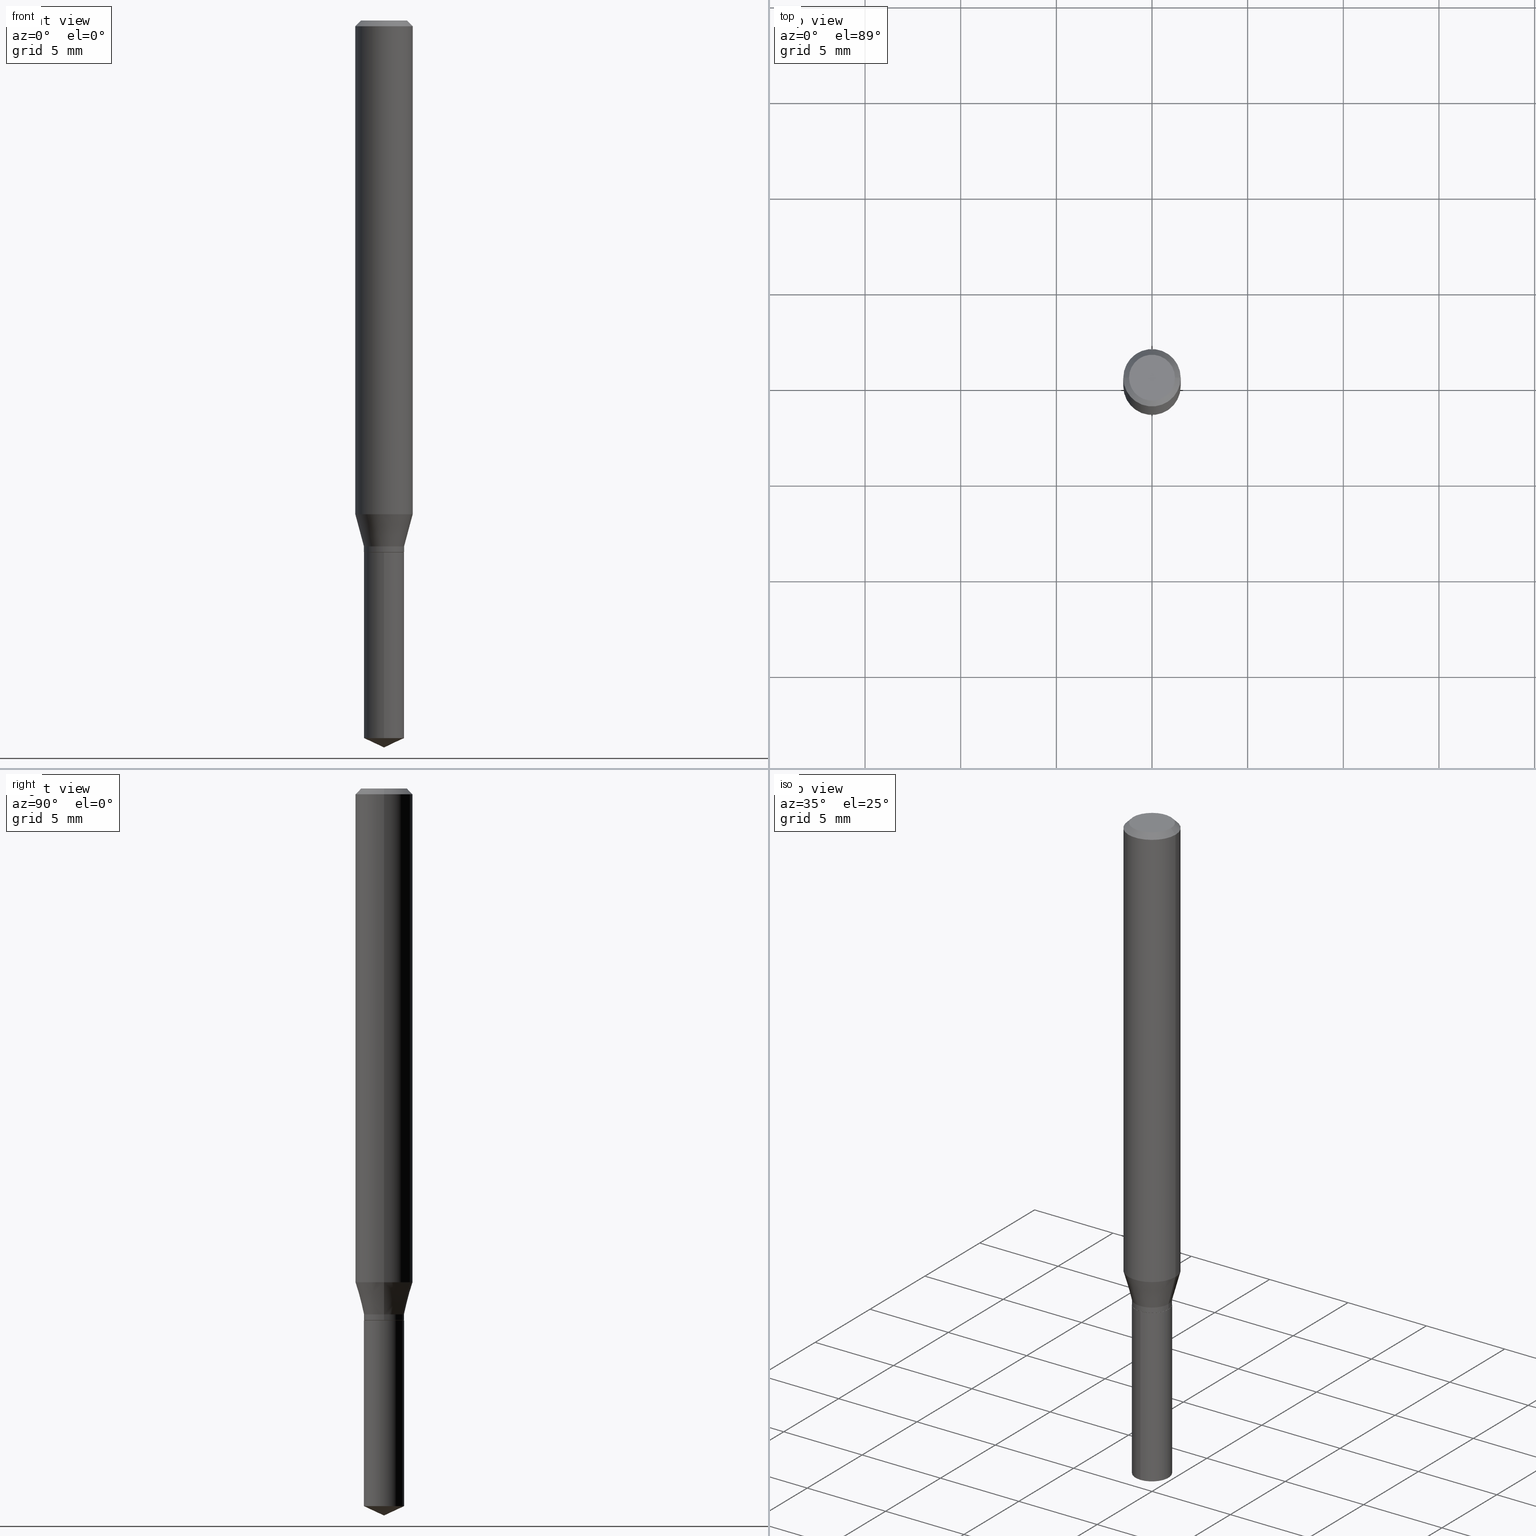
[diagram: canonical four-view strip — front | top / right | iso, engineering-drawing reading convention]
A machine part, canonical four-view strip (front | top / right | iso — engineering-drawing reading convention). The complete STEP part file that produces these views, byte-faithful:
ISO-10303-21;
HEADER;
FILE_DESCRIPTION (( 'STEP AP203' ),
    '1' );
FILE_NAME ('07612.STEP',
    '2024-04-23T23:45:35',
    ( '' ),
    ( '' ),
    'SwSTEP 2.0',
    'SolidWorks 2023',
    '' );
FILE_SCHEMA (( 'CONFIG_CONTROL_DESIGN' ));
ENDSEC;

DATA;
#1 = DIRECTION ( 'NONE',  ( 0.000000000000000000, 0.000000000000000000, 1.000000000000000000 ) ) ;
#2 = AXIS2_PLACEMENT_3D ( 'NONE', #481, #444, #100 ) ;
#3 = DIRECTION ( 'NONE',  ( 0.7071067811865232589, -2.468850131082003836E-15, 0.7071067811865715536 ) ) ;
#4 = ORIENTED_EDGE ( 'NONE', *, *, #73, .T. ) ;
#5 = PERSON_AND_ORGANIZATION ( #101, #90 ) ;
#6 = LINE ( 'NONE', #166, #331 ) ;
#7 = ORIENTED_EDGE ( 'NONE', *, *, #375, .F. ) ;
#8 = APPROVAL_ROLE ( '' ) ;
#9 = EDGE_CURVE ( 'NONE', #92, #380, #118, .T. ) ;
#10 = VERTEX_POINT ( 'NONE', #405 ) ;
#11 = APPROVAL_DATE_TIME ( #320, #190 ) ;
#12 = AXIS2_PLACEMENT_3D ( 'NONE', #106, #400, #333 ) ;
#13 = LINE ( 'NONE', #396, #371 ) ;
#14 = APPROVAL ( #251, 'UNSPECIFIED' ) ;
#15 = ORIENTED_EDGE ( 'NONE', *, *, #36, .T. ) ;
#16 = FACE_OUTER_BOUND ( 'NONE', #50, .T. ) ;
#17 = CARTESIAN_POINT ( 'NONE',  ( 2.676565608369631794E-29, -3.821426325363822773E-15, -1.094499999999999806 ) ) ;
#18 = PRODUCT_RELATED_PRODUCT_CATEGORY ( 'detail', '', ( #281 ) ) ;
#19 = CARTESIAN_POINT ( 'NONE',  ( -9.261924752013118283E-28, 1.322368428517963298E-13, 37.87397874015748300 ) ) ;
#20 = AXIS2_PLACEMENT_3D ( 'NONE', #211, #208, #45 ) ;
#21 = DIRECTION ( 'NONE',  ( -0.2588190451025214611, 5.211531920934551042E-15, 0.9659258262890682012 ) ) ;
#22 = LINE ( 'NONE', #268, #134 ) ;
#23 = ADVANCED_FACE ( 'NONE', ( #199 ), #187, .T. ) ;
#24 = CARTESIAN_POINT ( 'NONE',  ( 2.484700730328698523E-29, -3.547494128982896816E-15, -1.016042700706030422 ) ) ;
#25 = CARTESIAN_POINT ( 'NONE',  ( 2.676565608369631794E-29, -3.821426325363822773E-15, -1.094499999999999806 ) ) ;
#26 = ORIENTED_EDGE ( 'NONE', *, *, #57, .T. ) ;
#27 = EDGE_LOOP ( 'NONE', ( #76, #347, #243, #7 ) ) ;
#28 =( NAMED_UNIT ( * ) PLANE_ANGLE_UNIT ( ) SI_UNIT ( $, .RADIAN. ) );
#29 = EDGE_CURVE ( 'NONE', #10, #237, #487, .T. ) ;
#30 =( NAMED_UNIT ( * ) SI_UNIT ( $, .STERADIAN. ) SOLID_ANGLE_UNIT ( ) );
#31 = CIRCLE ( 'NONE', #249, 0.04134999999999999787 ) ;
#32 = AXIS2_PLACEMENT_3D ( 'NONE', #471, #265, #261 ) ;
#33 = DIRECTION ( 'NONE',  ( -2.445468806185136877E-29, 3.491481338843145188E-15, 1.000000000000000000 ) ) ;
#34 = LINE ( 'NONE', #236, #309 ) ;
#35 = CARTESIAN_POINT ( 'NONE',  ( 2.676565608369631794E-29, -3.821426325363822773E-15, -1.094499999999999806 ) ) ;
#36 = EDGE_CURVE ( 'NONE', #74, #273, #274, .T. ) ;
#37 = EDGE_LOOP ( 'NONE', ( #288, #466, #103, #457 ) ) ;
#38 = ORIENTED_EDGE ( 'NONE', *, *, #235, .T. ) ;
#39 = PERSON_AND_ORGANIZATION_ROLE ( 'design_supplier' ) ;
#40 = LOCAL_TIME ( 19, 45, 35.00000000000000000, #455 ) ;
#41 = DIRECTION ( 'NONE',  ( -6.328713451373382789E-15, -0.9063077870366502697, 0.4226182617406985531 ) ) ;
#42 = ORIENTED_EDGE ( 'NONE', *, *, #195, .F. ) ;
#43 = EDGE_CURVE ( 'NONE', #92, #116, #316, .T. ) ;
#44 = APPROVAL_ROLE ( '' ) ;
#45 = DIRECTION ( 'NONE',  ( -6.982962677686265922E-15, -1.000000000000000000, 6.606645692053841341E-15 ) ) ;
#46 = EDGE_LOOP ( 'NONE', ( #248, #382 ) ) ;
#47 = PERSON_AND_ORGANIZATION ( #101, #90 ) ;
#48 = EDGE_CURVE ( 'NONE', #234, #380, #201, .T. ) ;
#49 = CARTESIAN_POINT ( 'NONE',  ( 2.646241795172936147E-29, -3.778131956762167118E-15, -1.082099999999999840 ) ) ;
#50 = EDGE_LOOP ( 'NONE', ( #284, #352, #280, #65 ) ) ;
#51 = CALENDAR_DATE ( 2024, 23, 4 ) ;
#52 = AXIS2_PLACEMENT_3D ( 'NONE', #180, #404, #374 ) ;
#53 = CARTESIAN_POINT ( 'NONE',  ( 2.676565608369631794E-29, -3.821426325363822773E-15, -1.094499999999999806 ) ) ;
#54 = VECTOR ( 'NONE', #21, 39.37007874015747433 ) ;
#55 = EDGE_CURVE ( 'NONE', #350, #234, #171, .T. ) ;
#56 = CARTESIAN_POINT ( 'NONE',  ( -0.04724000000000000421, 3.504923541997677355E-16, -3.380025165670481712E-19 ) ) ;
#57 = EDGE_CURVE ( 'NONE', #163, #74, #303, .T. ) ;
#58 = DIRECTION ( 'NONE',  ( -2.445468806185136597E-29, 3.491481338843145583E-15, 1.000000000000000000 ) ) ;
#59 = FACE_OUTER_BOUND ( 'NONE', #131, .T. ) ;
#60 = CIRCLE ( 'NONE', #20, 0.04134999999999999787 ) ;
#61 = VERTEX_POINT ( 'NONE', #276 ) ;
#62 = ADVANCED_FACE ( 'NONE', ( #162 ), #336, .T. ) ;
#63 = CARTESIAN_POINT ( 'NONE',  ( 3.611508999955605418E-29, -5.156288534538537160E-15, -1.476818178335290943 ) ) ;
#64 = ORIENTED_EDGE ( 'NONE', *, *, #341, .F. ) ;
#65 = ORIENTED_EDGE ( 'NONE', *, *, #165, .F. ) ;
#66 = DIRECTION ( 'NONE',  ( 1.000000000000000000, -6.982962677686268288E-15, 0.000000000000000000 ) ) ;
#67 = CARTESIAN_POINT ( 'NONE',  ( -0.05905000000000000526, 3.711095515056362547E-16, -0.01181000000000007565 ) ) ;
#68 = LINE ( 'NONE', #475, #54 ) ;
#69 = AXIS2_PLACEMENT_3D ( 'NONE', #432, #141, #296 ) ;
#70 = CIRCLE ( 'NONE', #373, 0.05905000000000000526 ) ;
#71 = EDGE_LOOP ( 'NONE', ( #209, #435, #64, #169 ) ) ;
#72 = DIRECTION ( 'NONE',  ( 1.000000000000000000, -6.982962677686266711E-15, 4.876176775795936353E-29 ) ) ;
#73 = EDGE_CURVE ( 'NONE', #61, #380, #124, .T. ) ;
#74 = VERTEX_POINT ( 'NONE', #150 ) ;
#75 =( CONVERSION_BASED_UNIT ( 'INCH', #126 ) LENGTH_UNIT ( ) NAMED_UNIT ( #119 ) );
#76 = ORIENTED_EDGE ( 'NONE', *, *, #9, .F. ) ;
#77 = FACE_OUTER_BOUND ( 'NONE', #252, .T. ) ;
#78 = VERTEX_POINT ( 'NONE', #304 ) ;
#79 = VECTOR ( 'NONE', #392, 39.37007874015747433 ) ;
#80 = CARTESIAN_POINT ( 'NONE',  ( 0.05905000000000000526, -4.463468013801467941E-16, -0.01181000000000007565 ) ) ;
#81 = ADVANCED_FACE ( 'NONE', ( #442 ), #107, .F. ) ;
#82 = EDGE_LOOP ( 'NONE', ( #370, #212, #321, #108 ) ) ;
#83 = DIRECTION ( 'NONE',  ( -2.445468806185136597E-29, 3.491481338843145583E-15, 1.000000000000000000 ) ) ;
#84 = ORIENTED_EDGE ( 'NONE', *, *, #120, .F. ) ;
#85 = APPROVAL_DATE_TIME ( #461, #324 ) ;
#86 = FACE_OUTER_BOUND ( 'NONE', #82, .T. ) ;
#87 = ORIENTED_EDGE ( 'NONE', *, *, #449, .F. ) ;
#88 = AXIS2_PLACEMENT_3D ( 'NONE', #17, #283, #424 ) ;
#89 = MECHANICAL_CONTEXT ( 'NONE', #454, 'mechanical' ) ;
#90 = ORGANIZATION ( 'UNSPECIFIED', 'UNSPECIFIED', '' ) ;
#91 = CARTESIAN_POINT ( 'NONE',  ( -0.04134999999999999787, -3.505096849491482388E-15, -1.093999999999999861 ) ) ;
#92 = VERTEX_POINT ( 'NONE', #229 ) ;
#93 = COORDINATED_UNIVERSAL_TIME_OFFSET ( 5, 0, .BEHIND. ) ;
#94 = DIRECTION ( 'NONE',  ( -2.445468806185136597E-29, 3.491481338843145583E-15, 1.000000000000000000 ) ) ;
#95 = VERTEX_POINT ( 'NONE', #152 ) ;
#96 = SHAPE_DEFINITION_REPRESENTATION ( #451, #240 ) ;
#97 = AXIS2_PLACEMENT_3D ( 'NONE', #139, #94, #349 ) ;
#98 = CARTESIAN_POINT ( 'NONE',  ( 2.646241795172936147E-29, -3.778131956762167118E-15, -1.082099999999999840 ) ) ;
#99 = AXIS2_PLACEMENT_3D ( 'NONE', #311, #269, #193 ) ;
#100 = DIRECTION ( 'NONE',  ( 1.000000000000000000, -6.982962677686265133E-15, 0.000000000000000000 ) ) ;
#101 = PERSON ( 'UNSPECIFIED', 'UNSPECIFIED', 'UNSPECIFIED', ('UNSPECIFIED'), ('UNSPECIFIED'), ('UNSPECIFIED') ) ;
#102 = DIRECTION ( 'NONE',  ( -6.982962677686265922E-15, -1.000000000000000000, 6.606645692053841341E-15 ) ) ;
#103 = ORIENTED_EDGE ( 'NONE', *, *, #388, .F. ) ;
#104 = LINE ( 'NONE', #364, #355 ) ;
#105 = CC_DESIGN_DATE_AND_TIME_ASSIGNMENT ( #317, #384, ( #182 ) ) ;
#106 = CARTESIAN_POINT ( 'NONE',  ( 2.888098660104664642E-31, -4.123439461173780879E-17, -0.01181000000000007565 ) ) ;
#107 = PLANE ( 'NONE',  #397 ) ;
#108 = ORIENTED_EDGE ( 'NONE', *, *, #43, .F. ) ;
#109 = DIRECTION ( 'NONE',  ( -2.445468806185136597E-29, 3.491481338843145583E-15, 1.000000000000000000 ) ) ;
#110 = ORIENTED_EDGE ( 'NONE', *, *, #120, .T. ) ;
#111 = DIRECTION ( 'NONE',  ( 1.000000000000000000, -6.982962677686273021E-15, 0.000000000000000000 ) ) ;
#112 = ADVANCED_FACE ( 'NONE', ( #306 ), #377, .T. ) ;
#113 = AXIS2_PLACEMENT_3D ( 'NONE', #329, #173, #286 ) ;
#114 = VECTOR ( 'NONE', #381, 39.37007874015748143 ) ;
#115 = CARTESIAN_POINT ( 'NONE',  ( 2.675342873966538993E-29, -3.819680584694400481E-15, -1.093999999999999861 ) ) ;
#116 = VERTEX_POINT ( 'NONE', #254 ) ;
#117 = CARTESIAN_POINT ( 'NONE',  ( 2.938094212368281344E-16, 0.04134999999999617454, -1.094500000000000028 ) ) ;
#118 = LINE ( 'NONE', #158, #142 ) ;
#119 = DIMENSIONAL_EXPONENTS ( 1.000000000000000000, 0.000000000000000000, 0.000000000000000000, 0.000000000000000000, 0.000000000000000000, 0.000000000000000000, 0.000000000000000000 ) ;
#120 = EDGE_CURVE ( 'NONE', #95, #237, #472, .T. ) ;
#121 = DIRECTION ( 'NONE',  ( 0.7071067811865454633, -7.319954787623248157E-15, -0.7071067811865495711 ) ) ;
#122 = ORIENTED_EDGE ( 'NONE', *, *, #313, .F. ) ;
#123 = UNCERTAINTY_MEASURE_WITH_UNIT (LENGTH_MEASURE( 1.000000000000000082E-05 ), #75, 'distance_accuracy_value', 'NONE');
#124 = CIRCLE ( 'NONE', #159, 0.05905000000000000526 ) ;
#125 = CC_DESIGN_SECURITY_CLASSIFICATION ( #425, ( #271 ) ) ;
#126 = LENGTH_MEASURE_WITH_UNIT ( LENGTH_MEASURE( 0.02539999999999999897 ), #488 );
#127 = ORIENTED_EDGE ( 'NONE', *, *, #363, .F. ) ;
#128 = DIRECTION ( 'NONE',  ( 1.000000000000000000, 0.000000000000000000, 0.000000000000000000 ) ) ;
#129 = MANIFOLD_SOLID_BREP ( 'Body-Move/Copy2[1]', #437 ) ;
#130 = DIRECTION ( 'NONE',  ( 1.000000000000000000, -6.982962677686273021E-15, 0.000000000000000000 ) ) ;
#131 = EDGE_LOOP ( 'NONE', ( #328, #110 ) ) ;
#132 = DIRECTION ( 'NONE',  ( 1.000000000000000000, -6.982962677686273021E-15, 0.000000000000000000 ) ) ;
#133 = ORIENTED_EDGE ( 'NONE', *, *, #490, .T. ) ;
#134 = VECTOR ( 'NONE', #186, 39.37007874015748143 ) ;
#135 = APPROVAL_DATE_TIME ( #327, #14 ) ;
#136 = CARTESIAN_POINT ( 'NONE',  ( 0.000000000000000000, 0.000000000000000000, 0.000000000000000000 ) ) ;
#137 = ORIENTED_EDGE ( 'NONE', *, *, #145, .F. ) ;
#138 = PERSON_AND_ORGANIZATION_ROLE ( 'creator' ) ;
#139 = CARTESIAN_POINT ( 'NONE',  ( 2.676565608369631794E-29, -3.821426325363822773E-15, -1.094499999999999806 ) ) ;
#140 = ADVANCED_FACE ( 'NONE', ( #218 ), #402, .T. ) ;
#141 = DIRECTION ( 'NONE',  ( -2.445468806185136597E-29, 3.491481338843145583E-15, 1.000000000000000000 ) ) ;
#142 = VECTOR ( 'NONE', #33, 39.37007874015748143 ) ;
#143 = CARTESIAN_POINT ( 'NONE',  ( 0.04134999999999999787, -4.108426091416728215E-15, -1.093999999999999861 ) ) ;
#144 = VECTOR ( 'NONE', #148, 39.37007874015748143 ) ;
#145 = EDGE_CURVE ( 'NONE', #116, #61, #6, .T. ) ;
#146 = FACE_OUTER_BOUND ( 'NONE', #71, .T. ) ;
#147 = EDGE_CURVE ( 'NONE', #383, #116, #247, .T. ) ;
#148 = DIRECTION ( 'NONE',  ( -2.445468806185136877E-29, 3.491481338843145188E-15, 1.000000000000000000 ) ) ;
#149 = CONICAL_SURFACE ( 'NONE', #277, 84.42940631927494621, 1.134464013796318671 ) ;
#150 = CARTESIAN_POINT ( 'NONE',  ( 0.04084999999999999742, -4.106680350747306712E-15, -1.094499999999999806 ) ) ;
#151 = CARTESIAN_POINT ( 'NONE',  ( 2.676565608369631794E-29, -3.821426325363822773E-15, -1.094499999999999806 ) ) ;
#152 = CARTESIAN_POINT ( 'NONE',  ( 2.938094212368375514E-16, 0.04134999999999618148, -1.094500000000000028 ) ) ;
#153 = VERTEX_POINT ( 'NONE', #91 ) ;
#154 = FACE_OUTER_BOUND ( 'NONE', #227, .T. ) ;
#155 = AXIS2_PLACEMENT_3D ( 'NONE', #63, #360, #102 ) ;
#156 = DIRECTION ( 'NONE',  ( 6.439704144417038242E-15, 0.9063077870366533784, 0.4226182617406922803 ) ) ;
#157 = DIRECTION ( 'NONE',  ( -2.445458899330790108E-29, 3.491495526022433599E-15, 1.000000000000000000 ) ) ;
#158 = CARTESIAN_POINT ( 'NONE',  ( -0.05905000000000006771, 4.195754854663396409E-16, -2.904631170795525045E-30 ) ) ;
#159 = AXIS2_PLACEMENT_3D ( 'NONE', #315, #344, #456 ) ;
#160 = VECTOR ( 'NONE', #121, 39.37007874015748143 ) ;
#161 = APPROVAL_STATUS ( 'not_yet_approved' ) ;
#162 = FACE_OUTER_BOUND ( 'NONE', #445, .T. ) ;
#163 = VERTEX_POINT ( 'NONE', #462 ) ;
#164 = DATE_AND_TIME ( #51, #232 ) ;
#165 = EDGE_CURVE ( 'NONE', #267, #383, #463, .T. ) ;
#166 = CARTESIAN_POINT ( 'NONE',  ( 0.05905000000000006771, -4.123439461173745257E-16, 2.879382386107503723E-30 ) ) ;
#167 = ORIENTED_EDGE ( 'NONE', *, *, #480, .F. ) ;
#168 = CALENDAR_DATE ( 2024, 23, 4 ) ;
#169 = ORIENTED_EDGE ( 'NONE', *, *, #29, .F. ) ;
#170 = AXIS2_PLACEMENT_3D ( 'NONE', #389, #399, #177 ) ;
#171 = CIRCLE ( 'NONE', #196, 0.04724000000000000421 ) ;
#172 = CC_DESIGN_APPROVAL ( #324, ( #182 ) ) ;
#173 = DIRECTION ( 'NONE',  ( -2.445468806185136597E-29, 3.491481338843145583E-15, 1.000000000000000000 ) ) ;
#174 = ADVANCED_FACE ( 'NONE', ( #86 ), #345, .T. ) ;
#175 = VERTEX_POINT ( 'NONE', #470 ) ;
#176 = PERSON_AND_ORGANIZATION ( #101, #90 ) ;
#177 = DIRECTION ( 'NONE',  ( 1.000000000000000000, -6.982962677686267499E-15, 4.876176775795936353E-29 ) ) ;
#178 = CARTESIAN_POINT ( 'NONE',  ( 0.04134999999999999787, -4.066877463484494853E-15, -1.082099999999999840 ) ) ;
#179 = CLOSED_SHELL ( 'NONE', ( #112, #369, #474, #198, #430, #214, #174, #205, #295, #395, #81, #140 ) ) ;
#180 = CARTESIAN_POINT ( 'NONE',  ( 2.676565608369631794E-29, -3.821426325363822773E-15, -1.094499999999999806 ) ) ;
#181 = APPROVAL_PERSON_ORGANIZATION ( #458, #190, #44 ) ;
#182 = PRODUCT_DEFINITION ( 'UNKNOWN', '', #271, #422 ) ;
#183 = CARTESIAN_POINT ( 'NONE',  ( 2.675342873966538993E-29, -3.819680584694400481E-15, -1.093999999999999861 ) ) ;
#184 = DIRECTION ( 'NONE',  ( -2.445468806185136597E-29, 3.491481338843145583E-15, 1.000000000000000000 ) ) ;
#185 = DIRECTION ( 'NONE',  ( 1.000000000000000000, -6.982962677686266711E-15, 4.876185090822587894E-29 ) ) ;
#186 = DIRECTION ( 'NONE',  ( -2.445468806185136877E-29, 3.491481338843145188E-15, 1.000000000000000000 ) ) ;
#187 = CONICAL_SURFACE ( 'NONE', #379, 84.42940631927494621, 1.134464013796318671 ) ;
#188 = AXIS2_PLACEMENT_3D ( 'NONE', #183, #184, #300 ) ;
#189 = DIRECTION ( 'NONE',  ( -2.445468806185136597E-29, 3.491481338843145583E-15, 1.000000000000000000 ) ) ;
#190 = APPROVAL ( #322, 'UNSPECIFIED' ) ;
#191 = FACE_OUTER_BOUND ( 'NONE', #423, .T. ) ;
#192 = ORIENTED_EDGE ( 'NONE', *, *, #449, .T. ) ;
#193 = DIRECTION ( 'NONE',  ( -1.000000000000000000, 6.982962677686265922E-15, -4.876176775795935793E-29 ) ) ;
#194 = DIRECTION ( 'NONE',  ( 1.000000000000000000, -6.982962677686267499E-15, 4.876176775795936353E-29 ) ) ;
#195 = EDGE_CURVE ( 'NONE', #78, #10, #13, .T. ) ;
#196 = AXIS2_PLACEMENT_3D ( 'NONE', #338, #342, #185 ) ;
#197 = CIRCLE ( 'NONE', #188, 0.04134999999999999787 ) ;
#198 = ADVANCED_FACE ( 'NONE', ( #323 ), #297, .T. ) ;
#199 = FACE_OUTER_BOUND ( 'NONE', #310, .T. ) ;
#200 = FACE_OUTER_BOUND ( 'NONE', #319, .T. ) ;
#201 = LINE ( 'NONE', #67, #222 ) ;
#202 = DIRECTION ( 'NONE',  ( 1.000000000000000000, -6.982962677686265133E-15, 0.000000000000000000 ) ) ;
#203 = EDGE_LOOP ( 'NONE', ( #87, #414, #372, #216 ) ) ;
#204 = VECTOR ( 'NONE', #157, 39.37007874015748143 ) ;
#205 = ADVANCED_FACE ( 'NONE', ( #258 ), #294, .T. ) ;
#206 = APPROVAL_PERSON_ORGANIZATION ( #47, #324, #8 ) ;
#207 = PERSON_AND_ORGANIZATION_ROLE ( 'classification_officer' ) ;
#208 = DIRECTION ( 'NONE',  ( -2.445458899330790108E-29, 3.491495526022433205E-15, 1.000000000000000000 ) ) ;
#209 = ORIENTED_EDGE ( 'NONE', *, *, #287, .T. ) ;
#210 = PERSON_AND_ORGANIZATION ( #101, #90 ) ;
#211 = CARTESIAN_POINT ( 'NONE',  ( 3.611508999955605418E-29, -5.156288534538537160E-15, -1.476818178335290943 ) ) ;
#212 = ORIENTED_EDGE ( 'NONE', *, *, #165, .T. ) ;
#213 = COORDINATED_UNIVERSAL_TIME_OFFSET ( 5, 0, .BEHIND. ) ;
#214 = ADVANCED_FACE ( 'NONE', ( #16 ), #421, .T. ) ;
#215 = DIRECTION ( 'NONE',  ( -2.445458899330790108E-29, 3.491495526022433205E-15, 1.000000000000000000 ) ) ;
#216 = ORIENTED_EDGE ( 'NONE', *, *, #375, .T. ) ;
#217 = CIRCLE ( 'NONE', #398, 0.04134999999999999787 ) ;
#218 = FACE_OUTER_BOUND ( 'NONE', #412, .T. ) ;
#219 = CARTESIAN_POINT ( 'NONE',  ( 2.646241795172936147E-29, -3.778131956762167118E-15, -1.082099999999999840 ) ) ;
#220 = CARTESIAN_POINT ( 'NONE',  ( -0.05905000000000000526, -1.374788776330977188E-15, -0.01181000000000007565 ) ) ;
#221 = EDGE_CURVE ( 'NONE', #234, #350, #478, .T. ) ;
#222 = VECTOR ( 'NONE', #312, 39.37007874015748143 ) ;
#223 = CYLINDRICAL_SURFACE ( 'NONE', #278, 0.04134999999999999787 ) ;
#224 = ORIENTED_EDGE ( 'NONE', *, *, #195, .T. ) ;
#225 = PLANE ( 'NONE',  #52 ) ;
#226 = DIRECTION ( 'NONE',  ( -2.445458899330790108E-29, 3.491495526022433205E-15, 1.000000000000000000 ) ) ;
#227 = EDGE_LOOP ( 'NONE', ( #460, #418, #426, #137 ) ) ;
#228 = CC_DESIGN_PERSON_AND_ORGANIZATION_ASSIGNMENT ( #348, #207, ( #425 ) ) ;
#229 = CARTESIAN_POINT ( 'NONE',  ( -0.05905000000000013016, -3.127918643516556534E-15, -1.016042700706030422 ) ) ;
#230 = ORIENTED_EDGE ( 'NONE', *, *, #378, .F. ) ;
#231 = AXIS2_PLACEMENT_3D ( 'NONE', #98, #354, #256 ) ;
#232 = LOCAL_TIME ( 19, 45, 35.00000000000000000, #93 ) ;
#233 = ORIENTED_EDGE ( 'NONE', *, *, #388, .T. ) ;
#234 = VERTEX_POINT ( 'NONE', #56 ) ;
#235 = EDGE_CURVE ( 'NONE', #383, #267, #31, .T. ) ;
#236 = CARTESIAN_POINT ( 'NONE',  ( 3.658672935554494692E-29, -5.223595400746700193E-15, -1.496099999999999985 ) ) ;
#237 = VERTEX_POINT ( 'NONE', #385 ) ;
#238 = CONICAL_SURFACE ( 'NONE', #12, 0.05905000000000000526, 0.7853981633974453924 ) ;
#239 = CIRCLE ( 'NONE', #2, 0.05905000000000013016 ) ;
#240 = ADVANCED_BREP_SHAPE_REPRESENTATION ( '07612', ( #129, #447, #250 ), #438 ) ;
#241 = AXIS2_PLACEMENT_3D ( 'NONE', #242, #411, #72 ) ;
#242 = CARTESIAN_POINT ( 'NONE',  ( 0.000000000000000000, 0.000000000000000000, 0.000000000000000000 ) ) ;
#243 = ORIENTED_EDGE ( 'NONE', *, *, #145, .T. ) ;
#244 = DIRECTION ( 'NONE',  ( -2.445468806185136597E-29, 3.491481338843145583E-15, 1.000000000000000000 ) ) ;
#245 = EDGE_CURVE ( 'NONE', #175, #10, #60, .T. ) ;
#246 = PERSON_AND_ORGANIZATION_ROLE ( 'creator' ) ;
#247 = LINE ( 'NONE', #178, #79 ) ;
#248 = ORIENTED_EDGE ( 'NONE', *, *, #264, .F. ) ;
#249 = AXIS2_PLACEMENT_3D ( 'NONE', #219, #330, #130 ) ;
#250 = AXIS2_PLACEMENT_3D ( 'NONE', #343, #1, #128 ) ;
#251 = APPROVAL_STATUS ( 'not_yet_approved' ) ;
#252 = EDGE_LOOP ( 'NONE', ( #448, #429 ) ) ;
#253 = CALENDAR_DATE ( 2024, 23, 4 ) ;
#254 = CARTESIAN_POINT ( 'NONE',  ( 0.05905000000000013016, -3.959838075100271736E-15, -1.016042700706030422 ) ) ;
#255 = ORIENTED_EDGE ( 'NONE', *, *, #29, .T. ) ;
#256 = DIRECTION ( 'NONE',  ( 1.000000000000000000, -6.982962677686273021E-15, 0.000000000000000000 ) ) ;
#257 = AXIS2_PLACEMENT_3D ( 'NONE', #53, #215, #291 ) ;
#258 = FACE_OUTER_BOUND ( 'NONE', #27, .T. ) ;
#259 = FACE_OUTER_BOUND ( 'NONE', #440, .T. ) ;
#260 = DIRECTION ( 'NONE',  ( -2.445458899330790108E-29, 3.491495526022433205E-15, 1.000000000000000000 ) ) ;
#261 = DIRECTION ( 'NONE',  ( -1.000000000000000000, 6.982962677686265922E-15, 0.000000000000000000 ) ) ;
#262 = AXIS2_PLACEMENT_3D ( 'NONE', #275, #484, #194 ) ;
#263 = ORIENTED_EDGE ( 'NONE', *, *, #293, .F. ) ;
#264 = EDGE_CURVE ( 'NONE', #74, #163, #361, .T. ) ;
#265 = DIRECTION ( 'NONE',  ( 2.445468806185136597E-29, -3.491481338843145583E-15, -1.000000000000000000 ) ) ;
#266 = CARTESIAN_POINT ( 'NONE',  ( 2.676565608369631794E-29, -3.821426325363822773E-15, -1.094499999999999806 ) ) ;
#267 = VERTEX_POINT ( 'NONE', #334 ) ;
#268 = CARTESIAN_POINT ( 'NONE',  ( 0.04134999999999999787, -2.887455067223271427E-16, 2.016299096791619635E-30 ) ) ;
#269 = DIRECTION ( 'NONE',  ( 2.438088387897960049E-29, -3.491481338843145188E-15, -1.000000000000000000 ) ) ;
#270 = AXIS2_PLACEMENT_3D ( 'NONE', #35, #479, #318 ) ;
#271 = PRODUCT_DEFINITION_FORMATION_WITH_SPECIFIED_SOURCE ( 'ANY', '', #281, .NOT_KNOWN. ) ;
#272 = PLANE ( 'NONE',  #99 ) ;
#273 = VERTEX_POINT ( 'NONE', #143 ) ;
#274 = LINE ( 'NONE', #419, #409 ) ;
#275 = CARTESIAN_POINT ( 'NONE',  ( 0.000000000000000000, 0.000000000000000000, 0.000000000000000000 ) ) ;
#276 = CARTESIAN_POINT ( 'NONE',  ( 0.05905000000000000526, -4.535783407291119586E-16, -0.01181000000000007565 ) ) ;
#277 = AXIS2_PLACEMENT_3D ( 'NONE', #19, #434, #368 ) ;
#278 = AXIS2_PLACEMENT_3D ( 'NONE', #476, #260, #366 ) ;
#279 = CC_DESIGN_PERSON_AND_ORGANIZATION_ASSIGNMENT ( #469, #246, ( #182 ) ) ;
#280 = ORIENTED_EDGE ( 'NONE', *, *, #293, .T. ) ;
#281 = PRODUCT ( '07612', '07612', '', ( #89 ) ) ;
#282 = APPLICATION_PROTOCOL_DEFINITION ( 'international standard', 'config_control_design', 1994, #427 ) ;
#283 = DIRECTION ( 'NONE',  ( -2.445468806185136597E-29, 3.491481338843145583E-15, 1.000000000000000000 ) ) ;
#284 = ORIENTED_EDGE ( 'NONE', *, *, #365, .F. ) ;
#285 = PERSON_AND_ORGANIZATION_ROLE ( 'design_owner' ) ;
#286 = DIRECTION ( 'NONE',  ( 1.000000000000000000, -6.982962677686273021E-15, 0.000000000000000000 ) ) ;
#287 = EDGE_CURVE ( 'NONE', #10, #175, #289, .T. ) ;
#288 = ORIENTED_EDGE ( 'NONE', *, *, #264, .T. ) ;
#289 = CIRCLE ( 'NONE', #155, 0.04134999999999999787 ) ;
#290 = CALENDAR_DATE ( 2024, 23, 4 ) ;
#291 = DIRECTION ( 'NONE',  ( -6.982962677686265922E-15, -1.000000000000000000, 3.303322846026920670E-15 ) ) ;
#292 = ORIENTED_EDGE ( 'NONE', *, *, #365, .T. ) ;
#293 = EDGE_CURVE ( 'NONE', #273, #383, #22, .T. ) ;
#294 = CYLINDRICAL_SURFACE ( 'NONE', #308, 0.05905000000000006771 ) ;
#295 = ADVANCED_FACE ( 'NONE', ( #408 ), #238, .T. ) ;
#296 = DIRECTION ( 'NONE',  ( 1.000000000000000000, -6.982962677686266711E-15, 4.876185090822587894E-29 ) ) ;
#297 = CONICAL_SURFACE ( 'NONE', #113, 0.04134999999999999787, 0.2617993877991501295 ) ;
#298 = AXIS2_PLACEMENT_3D ( 'NONE', #115, #83, #111 ) ;
#299 = ADVANCED_FACE ( 'NONE', ( #259 ), #149, .T. ) ;
#300 = DIRECTION ( 'NONE',  ( 1.000000000000000000, -6.982962677686273021E-15, 0.000000000000000000 ) ) ;
#301 = DIRECTION ( 'NONE',  ( -0.7071067811865232589, 7.493145998870265808E-15, 0.7071067811865715536 ) ) ;
#302 = ADVANCED_FACE ( 'NONE', ( #59 ), #225, .F. ) ;
#303 = CIRCLE ( 'NONE', #416, 0.04084999999999999742 ) ;
#304 = CARTESIAN_POINT ( 'NONE',  ( 3.658651059288794515E-29, -5.223626456482161457E-15, -1.496099999999999985 ) ) ;
#305 = DIRECTION ( 'NONE',  ( -6.982962677686265922E-15, -1.000000000000000000, 3.303322846026920670E-15 ) ) ;
#306 = FACE_OUTER_BOUND ( 'NONE', #37, .T. ) ;
#307 = EDGE_LOOP ( 'NONE', ( #38, #393, #230, #390 ) ) ;
#308 = AXIS2_PLACEMENT_3D ( 'NONE', #136, #431, #358 ) ;
#309 = VECTOR ( 'NONE', #156, 39.37007874015748854 ) ;
#310 = EDGE_LOOP ( 'NONE', ( #356, #224, #468 ) ) ;
#311 = CARTESIAN_POINT ( 'NONE',  ( 4.132873053354867254E-48, -5.900647395337818946E-34, -1.690012582823346072E-19 ) ) ;
#312 = DIRECTION ( 'NONE',  ( -0.7071067811865454633, 2.468850131082235367E-15, -0.7071067811865495711 ) ) ;
#313 = EDGE_CURVE ( 'NONE', #163, #153, #104, .T. ) ;
#314 = CYLINDRICAL_SURFACE ( 'NONE', #241, 0.05905000000000006771 ) ;
#315 = CARTESIAN_POINT ( 'NONE',  ( 2.888098660104664642E-31, -4.123439461173780879E-17, -0.01181000000000007565 ) ) ;
#316 = CIRCLE ( 'NONE', #433, 0.05905000000000013016 ) ;
#317 = DATE_AND_TIME ( #253, #40 ) ;
#318 = DIRECTION ( 'NONE',  ( -6.982962677686265922E-15, -1.000000000000000000, 3.303322846026920670E-15 ) ) ;
#319 = EDGE_LOOP ( 'NONE', ( #233, #292, #325, #263 ) ) ;
#320 = DATE_AND_TIME ( #353, #362 ) ;
#321 = ORIENTED_EDGE ( 'NONE', *, *, #147, .T. ) ;
#322 = APPROVAL_STATUS ( 'not_yet_approved' ) ;
#323 = FACE_OUTER_BOUND ( 'NONE', #307, .T. ) ;
#324 = APPROVAL ( #161, 'UNSPECIFIED' ) ;
#325 = ORIENTED_EDGE ( 'NONE', *, *, #235, .F. ) ;
#326 = APPROVAL_PERSON_ORGANIZATION ( #210, #14, #420 ) ;
#327 = DATE_AND_TIME ( #168, #332 ) ;
#328 = ORIENTED_EDGE ( 'NONE', *, *, #341, .T. ) ;
#329 = CARTESIAN_POINT ( 'NONE',  ( 2.646241795172936147E-29, -3.778131956762167118E-15, -1.082099999999999840 ) ) ;
#330 = DIRECTION ( 'NONE',  ( -2.445468806185136597E-29, 3.491481338843145583E-15, 1.000000000000000000 ) ) ;
#331 = VECTOR ( 'NONE', #428, 39.37007874015748143 ) ;
#332 = LOCAL_TIME ( 19, 45, 35.00000000000000000, #357 ) ;
#333 = DIRECTION ( 'NONE',  ( -1.000000000000000000, 6.982962677686265922E-15, 0.000000000000000000 ) ) ;
#334 = CARTESIAN_POINT ( 'NONE',  ( -0.04134999999999999787, -3.505096849491482388E-15, -1.082099999999999840 ) ) ;
#335 = EDGE_CURVE ( 'NONE', #267, #92, #68, .T. ) ;
#336 = CYLINDRICAL_SURFACE ( 'NONE', #270, 0.04134999999999999787 ) ;
#337 = DIRECTION ( 'NONE',  ( -2.445458899330790108E-29, 3.491495526022433205E-15, 1.000000000000000000 ) ) ;
#338 = CARTESIAN_POINT ( 'NONE',  ( 8.265746106709734507E-48, -1.180129479067563789E-33, -3.380025165646692144E-19 ) ) ;
#339 = ORIENTED_EDGE ( 'NONE', *, *, #48, .F. ) ;
#340 = CARTESIAN_POINT ( 'NONE',  ( -9.261924752013118283E-28, 1.322368428517963298E-13, 37.87397874015748300 ) ) ;
#341 = EDGE_CURVE ( 'NONE', #237, #95, #217, .T. ) ;
#342 = DIRECTION ( 'NONE',  ( -2.445468806185136597E-29, 3.491481338843145583E-15, 1.000000000000000000 ) ) ;
#343 = CARTESIAN_POINT ( 'NONE',  ( 0.000000000000000000, 0.000000000000000000, 0.000000000000000000 ) ) ;
#344 = DIRECTION ( 'NONE',  ( -2.445468806185136597E-29, 3.491481338843145583E-15, 1.000000000000000000 ) ) ;
#345 = CONICAL_SURFACE ( 'NONE', #231, 0.04134999999999999787, 0.2617993877991501295 ) ;
#346 = LOCAL_TIME ( 19, 45, 35.00000000000000000, #394 ) ;
#347 = ORIENTED_EDGE ( 'NONE', *, *, #43, .T. ) ;
#348 = PERSON_AND_ORGANIZATION ( #101, #90 ) ;
#349 = DIRECTION ( 'NONE',  ( 1.000000000000000000, -6.982962677686273021E-15, 0.000000000000000000 ) ) ;
#350 = VERTEX_POINT ( 'NONE', #477 ) ;
#351 = PERSON_AND_ORGANIZATION ( #101, #90 ) ;
#352 = ORIENTED_EDGE ( 'NONE', *, *, #363, .T. ) ;
#353 = CALENDAR_DATE ( 2024, 23, 4 ) ;
#354 = DIRECTION ( 'NONE',  ( -2.445468806185136597E-29, 3.491481338843145583E-15, 1.000000000000000000 ) ) ;
#355 = VECTOR ( 'NONE', #301, 39.37007874015748854 ) ;
#356 = ORIENTED_EDGE ( 'NONE', *, *, #490, .F. ) ;
#357 = COORDINATED_UNIVERSAL_TIME_OFFSET ( 5, 0, .BEHIND. ) ;
#358 = DIRECTION ( 'NONE',  ( 1.000000000000000000, -6.982962677686266711E-15, 4.876176775795936353E-29 ) ) ;
#359 = ADVANCED_FACE ( 'NONE', ( #146 ), #223, .T. ) ;
#360 = DIRECTION ( 'NONE',  ( -2.445458899330790108E-29, 3.491495526022433205E-15, 1.000000000000000000 ) ) ;
#361 = CIRCLE ( 'NONE', #485, 0.04084999999999999742 ) ;
#362 = LOCAL_TIME ( 19, 45, 35.00000000000000000, #213 ) ;
#363 = EDGE_CURVE ( 'NONE', #153, #273, #197, .T. ) ;
#364 = CARTESIAN_POINT ( 'NONE',  ( -0.04084999999999999742, -3.531169617805821866E-15, -1.094499999999999806 ) ) ;
#365 = EDGE_CURVE ( 'NONE', #153, #267, #436, .T. ) ;
#366 = DIRECTION ( 'NONE',  ( -6.982962677686265922E-15, -1.000000000000000000, 3.303322846026920670E-15 ) ) ;
#367 = DIRECTION ( 'NONE',  ( -6.982962677686267499E-15, -1.000000000000000000, 3.520397390770428626E-15 ) ) ;
#368 = DIRECTION ( 'NONE',  ( -6.982962677686267499E-15, -1.000000000000000000, 3.520397390770428626E-15 ) ) ;
#369 = ADVANCED_FACE ( 'NONE', ( #191 ), #386, .T. ) ;
#370 = ORIENTED_EDGE ( 'NONE', *, *, #335, .F. ) ;
#371 = VECTOR ( 'NONE', #41, 39.37007874015748143 ) ;
#372 = ORIENTED_EDGE ( 'NONE', *, *, #48, .T. ) ;
#373 = AXIS2_PLACEMENT_3D ( 'NONE', #406, #58, #66 ) ;
#374 = DIRECTION ( 'NONE',  ( 6.982962677686265922E-15, 1.000000000000000000, -3.491495526022433599E-15 ) ) ;
#375 = EDGE_CURVE ( 'NONE', #380, #61, #70, .T. ) ;
#376 = ORIENTED_EDGE ( 'NONE', *, *, #245, .T. ) ;
#377 = CONICAL_SURFACE ( 'NONE', #97, 0.04084999999999999742, 0.7853981633974141952 ) ;
#378 = EDGE_CURVE ( 'NONE', #116, #92, #239, .T. ) ;
#379 = AXIS2_PLACEMENT_3D ( 'NONE', #340, #226, #367 ) ;
#380 = VERTEX_POINT ( 'NONE', #220 ) ;
#381 = DIRECTION ( 'NONE',  ( -2.445458899330790108E-29, 3.491495526022433599E-15, 1.000000000000000000 ) ) ;
#382 = ORIENTED_EDGE ( 'NONE', *, *, #57, .F. ) ;
#383 = VERTEX_POINT ( 'NONE', #486 ) ;
#384 = DATE_TIME_ROLE ( 'creation_date' ) ;
#385 = CARTESIAN_POINT ( 'NONE',  ( -2.887455067223003214E-16, -0.04135000000000382120, -1.094499999999999806 ) ) ;
#386 = CONICAL_SURFACE ( 'NONE', #32, 0.05905000000000000526, 0.7853981633974453924 ) ;
#387 = ORIENTED_EDGE ( 'NONE', *, *, #287, .F. ) ;
#388 = EDGE_CURVE ( 'NONE', #273, #153, #464, .T. ) ;
#389 = CARTESIAN_POINT ( 'NONE',  ( 0.000000000000000000, 0.000000000000000000, 0.000000000000000000 ) ) ;
#390 = ORIENTED_EDGE ( 'NONE', *, *, #147, .F. ) ;
#391 = DATE_TIME_ROLE ( 'classification_date' ) ;
#392 = DIRECTION ( 'NONE',  ( 0.2588190451025214611, 1.565188264969621573E-15, 0.9659258262890682012 ) ) ;
#393 = ORIENTED_EDGE ( 'NONE', *, *, #335, .T. ) ;
#394 = COORDINATED_UNIVERSAL_TIME_OFFSET ( 5, 0, .BEHIND. ) ;
#395 = ADVANCED_FACE ( 'NONE', ( #77 ), #272, .F. ) ;
#396 = CARTESIAN_POINT ( 'NONE',  ( 3.658651059288795076E-29, -5.223626456482161457E-15, -1.496099999999999985 ) ) ;
#397 = AXIS2_PLACEMENT_3D ( 'NONE', #266, #482, #407 ) ;
#398 = AXIS2_PLACEMENT_3D ( 'NONE', #25, #337, #305 ) ;
#399 = DIRECTION ( 'NONE',  ( -2.445468806185136597E-29, 3.491481338843145583E-15, 1.000000000000000000 ) ) ;
#400 = DIRECTION ( 'NONE',  ( 2.445468806185136597E-29, -3.491481338843145583E-15, -1.000000000000000000 ) ) ;
#401 = CARTESIAN_POINT ( 'NONE',  ( -0.04134999999999999787, 2.938094212368014117E-16, -2.033979659820403452E-30 ) ) ;
#402 = CONICAL_SURFACE ( 'NONE', #88, 0.04084999999999999742, 0.7853981633974141952 ) ;
#403 = CC_DESIGN_PERSON_AND_ORGANIZATION_ASSIGNMENT ( #351, #285, ( #281 ) ) ;
#404 = DIRECTION ( 'NONE',  ( 2.445458899330789267E-29, -3.491495526022433599E-15, -1.000000000000000000 ) ) ;
#405 = CARTESIAN_POINT ( 'NONE',  ( -2.887455067222910523E-16, -0.04135000000000516734, -1.476818178335290721 ) ) ;
#406 = CARTESIAN_POINT ( 'NONE',  ( 2.888098660104664642E-31, -4.123439461173780879E-17, -0.01181000000000007565 ) ) ;
#407 = DIRECTION ( 'NONE',  ( 1.000000000000000000, -6.982962677686265922E-15, 4.876176775795935793E-29 ) ) ;
#408 = FACE_OUTER_BOUND ( 'NONE', #203, .T. ) ;
#409 = VECTOR ( 'NONE', #3, 39.37007874015748854 ) ;
#410 = LINE ( 'NONE', #80, #160 ) ;
#411 = DIRECTION ( 'NONE',  ( -2.445468806185136597E-29, 3.491481338843145583E-15, 1.000000000000000000 ) ) ;
#412 = EDGE_LOOP ( 'NONE', ( #122, #26, #15, #127 ) ) ;
#413 = APPLICATION_PROTOCOL_DEFINITION ( 'international standard', 'config_control_design', 1994, #454 ) ;
#414 = ORIENTED_EDGE ( 'NONE', *, *, #221, .F. ) ;
#415 = CC_DESIGN_PERSON_AND_ORGANIZATION_ASSIGNMENT ( #176, #138, ( #271 ) ) ;
#416 = AXIS2_PLACEMENT_3D ( 'NONE', #489, #244, #450 ) ;
#417 = CYLINDRICAL_SURFACE ( 'NONE', #262, 0.04134999999999999787 ) ;
#418 = ORIENTED_EDGE ( 'NONE', *, *, #9, .T. ) ;
#419 = CARTESIAN_POINT ( 'NONE',  ( 0.04084999999999999742, -4.106680350747306712E-15, -1.094499999999999806 ) ) ;
#420 = APPROVAL_ROLE ( '' ) ;
#421 = CYLINDRICAL_SURFACE ( 'NONE', #170, 0.04134999999999999787 ) ;
#422 = DESIGN_CONTEXT ( 'detailed design', #427, 'design' ) ;
#423 = EDGE_LOOP ( 'NONE', ( #483, #192, #4, #339 ) ) ;
#424 = DIRECTION ( 'NONE',  ( 1.000000000000000000, -6.982962677686273021E-15, 0.000000000000000000 ) ) ;
#425 = SECURITY_CLASSIFICATION ( '', '', #467 ) ;
#426 = ORIENTED_EDGE ( 'NONE', *, *, #73, .F. ) ;
#427 = APPLICATION_CONTEXT ( 'configuration controlled 3d designs of mechanical parts and assemblies' ) ;
#428 = DIRECTION ( 'NONE',  ( -2.445468806185136877E-29, 3.491481338843145188E-15, 1.000000000000000000 ) ) ;
#429 = ORIENTED_EDGE ( 'NONE', *, *, #55, .T. ) ;
#430 = ADVANCED_FACE ( 'NONE', ( #200 ), #417, .T. ) ;
#431 = DIRECTION ( 'NONE',  ( -2.445468806185136597E-29, 3.491481338843145583E-15, 1.000000000000000000 ) ) ;
#432 = CARTESIAN_POINT ( 'NONE',  ( 8.265746106709734507E-48, -1.180129479067563789E-33, -3.380025165646692144E-19 ) ) ;
#433 = AXIS2_PLACEMENT_3D ( 'NONE', #24, #189, #202 ) ;
#434 = DIRECTION ( 'NONE',  ( -2.445458899330790108E-29, 3.491495526022433205E-15, 1.000000000000000000 ) ) ;
#435 = ORIENTED_EDGE ( 'NONE', *, *, #480, .T. ) ;
#436 = LINE ( 'NONE', #401, #144 ) ;
#437 = CLOSED_SHELL ( 'NONE', ( #359, #299, #23, #62, #302 ) ) ;
#438 =( GEOMETRIC_REPRESENTATION_CONTEXT ( 3 ) GLOBAL_UNCERTAINTY_ASSIGNED_CONTEXT ( ( #123 ) ) GLOBAL_UNIT_ASSIGNED_CONTEXT ( ( #75, #28, #30 ) ) REPRESENTATION_CONTEXT ( 'NONE', 'WORKASPACE' ) );
#439 = CC_DESIGN_APPROVAL ( #190, ( #425 ) ) ;
#440 = EDGE_LOOP ( 'NONE', ( #42, #133, #387 ) ) ;
#441 = DIRECTION ( 'NONE',  ( 1.000000000000000000, -6.982962677686273021E-15, 0.000000000000000000 ) ) ;
#442 = FACE_OUTER_BOUND ( 'NONE', #46, .T. ) ;
#443 = CC_DESIGN_PERSON_AND_ORGANIZATION_ASSIGNMENT ( #5, #39, ( #271 ) ) ;
#444 = DIRECTION ( 'NONE',  ( -2.445468806185136597E-29, 3.491481338843145583E-15, 1.000000000000000000 ) ) ;
#445 = EDGE_LOOP ( 'NONE', ( #167, #376, #255, #84 ) ) ;
#446 = AXIS2_PLACEMENT_3D ( 'NONE', #49, #459, #132 ) ;
#447 = MANIFOLD_SOLID_BREP ( 'Body-Move/Copy2[2]', #179 ) ;
#448 = ORIENTED_EDGE ( 'NONE', *, *, #221, .T. ) ;
#449 = EDGE_CURVE ( 'NONE', #350, #61, #410, .T. ) ;
#450 = DIRECTION ( 'NONE',  ( 1.000000000000000000, -6.982962677686273021E-15, 0.000000000000000000 ) ) ;
#451 = PRODUCT_DEFINITION_SHAPE ( 'NONE', 'NONE',  #182 ) ;
#452 = LINE ( 'NONE', #117, #114 ) ;
#453 = CARTESIAN_POINT ( 'NONE',  ( -2.887455067223003214E-16, -0.04135000000000382120, -1.094499999999999806 ) ) ;
#454 = APPLICATION_CONTEXT ( 'configuration controlled 3d designs of mechanical parts and assemblies' ) ;
#455 = COORDINATED_UNIVERSAL_TIME_OFFSET ( 5, 0, .BEHIND. ) ;
#456 = DIRECTION ( 'NONE',  ( 1.000000000000000000, -6.982962677686268288E-15, 0.000000000000000000 ) ) ;
#457 = ORIENTED_EDGE ( 'NONE', *, *, #36, .F. ) ;
#458 = PERSON_AND_ORGANIZATION ( #101, #90 ) ;
#459 = DIRECTION ( 'NONE',  ( -2.445468806185136597E-29, 3.491481338843145583E-15, 1.000000000000000000 ) ) ;
#460 = ORIENTED_EDGE ( 'NONE', *, *, #378, .T. ) ;
#461 = DATE_AND_TIME ( #290, #346 ) ;
#462 = CARTESIAN_POINT ( 'NONE',  ( -0.04084999999999999742, -3.528520390631710665E-15, -1.094499999999999806 ) ) ;
#463 = CIRCLE ( 'NONE', #446, 0.04134999999999999787 ) ;
#464 = CIRCLE ( 'NONE', #298, 0.04134999999999999787 ) ;
#465 = CC_DESIGN_DATE_AND_TIME_ASSIGNMENT ( #164, #391, ( #425 ) ) ;
#466 = ORIENTED_EDGE ( 'NONE', *, *, #313, .T. ) ;
#467 = SECURITY_CLASSIFICATION_LEVEL ( 'unclassified' ) ;
#468 = ORIENTED_EDGE ( 'NONE', *, *, #245, .F. ) ;
#469 = PERSON_AND_ORGANIZATION ( #101, #90 ) ;
#470 = CARTESIAN_POINT ( 'NONE',  ( 2.938094212368375514E-16, 0.04134999999999484921, -1.476818178335291165 ) ) ;
#471 = CARTESIAN_POINT ( 'NONE',  ( 2.888098660104664642E-31, -4.123439461173780879E-17, -0.01181000000000007565 ) ) ;
#472 = CIRCLE ( 'NONE', #257, 0.04134999999999999787 ) ;
#473 = CC_DESIGN_APPROVAL ( #14, ( #271 ) ) ;
#474 = ADVANCED_FACE ( 'NONE', ( #154 ), #314, .T. ) ;
#475 = CARTESIAN_POINT ( 'NONE',  ( -0.04134999999999999787, -3.484322535525365707E-15, -1.082099999999999840 ) ) ;
#476 = CARTESIAN_POINT ( 'NONE',  ( 2.676565608369631794E-29, -3.821426325363822773E-15, -1.094499999999999806 ) ) ;
#477 = CARTESIAN_POINT ( 'NONE',  ( 0.04724000000000000421, -3.852183633974369838E-16, -3.380025165621689721E-19 ) ) ;
#478 = CIRCLE ( 'NONE', #69, 0.04724000000000000421 ) ;
#479 = DIRECTION ( 'NONE',  ( -2.445458899330790108E-29, 3.491495526022433205E-15, 1.000000000000000000 ) ) ;
#480 = EDGE_CURVE ( 'NONE', #175, #95, #452, .T. ) ;
#481 = CARTESIAN_POINT ( 'NONE',  ( 2.484700730328698523E-29, -3.547494128982896816E-15, -1.016042700706030422 ) ) ;
#482 = DIRECTION ( 'NONE',  ( -2.438088387897960049E-29, 3.491481338843145188E-15, 1.000000000000000000 ) ) ;
#483 = ORIENTED_EDGE ( 'NONE', *, *, #55, .F. ) ;
#484 = DIRECTION ( 'NONE',  ( -2.445468806185136597E-29, 3.491481338843145583E-15, 1.000000000000000000 ) ) ;
#485 = AXIS2_PLACEMENT_3D ( 'NONE', #151, #109, #441 ) ;
#486 = CARTESIAN_POINT ( 'NONE',  ( 0.04134999999999999787, -4.066877463484494853E-15, -1.082099999999999840 ) ) ;
#487 = LINE ( 'NONE', #453, #204 ) ;
#488 =( LENGTH_UNIT ( ) NAMED_UNIT ( * ) SI_UNIT ( $, .METRE. ) );
#489 = CARTESIAN_POINT ( 'NONE',  ( 2.676565608369631794E-29, -3.821426325363822773E-15, -1.094499999999999806 ) ) ;
#490 = EDGE_CURVE ( 'NONE', #78, #175, #34, .T. ) ;
ENDSEC;
END-ISO-10303-21;
